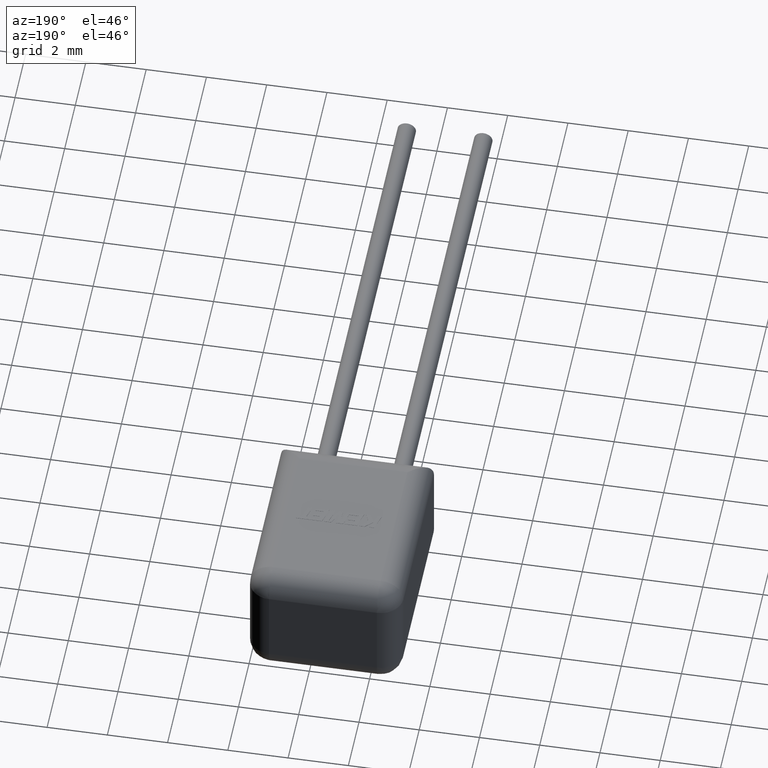
[diagram: clean part render]
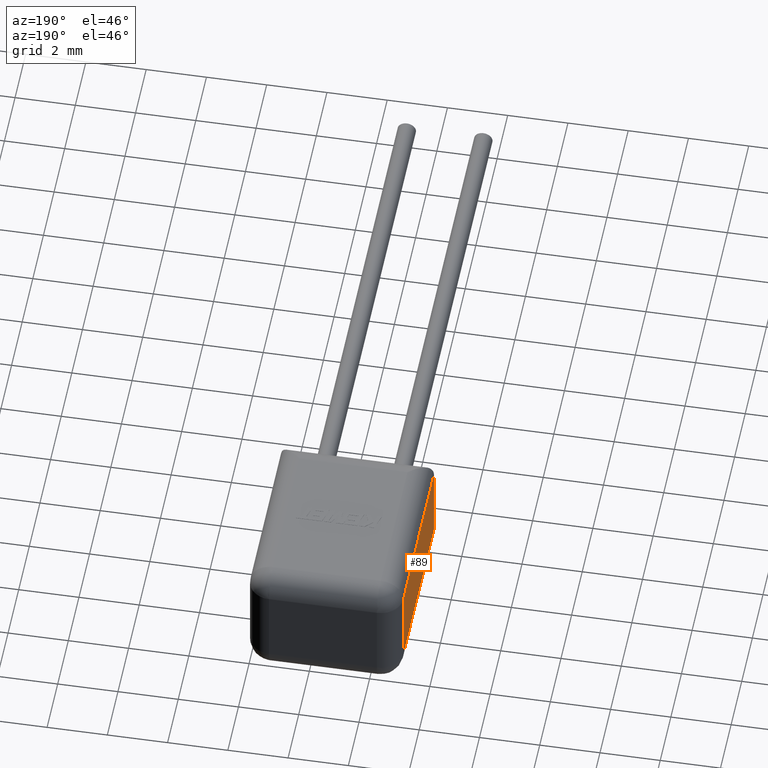
[diagram: same view with one face highlighted and labeled with its STEP entity id]
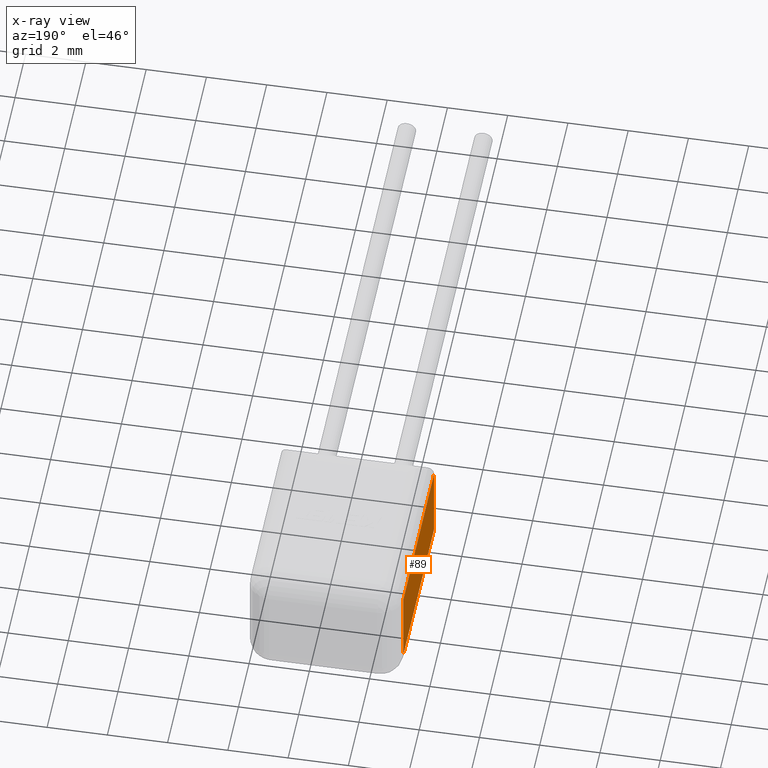
[diagram: x-ray of the same camera — body ghosted, the highlighted face saturated]
A machine part, auxiliary view. The second image highlights one B-rep face of the part: STEP entity #89.
The next image is the same camera in x-ray: the body ghosted, the highlighted face saturated — about 0% of this face is hidden behind the body in this view.
In plain terms, the highlighted planar face has unit normal (1, -0, 0).
Its self-contained STEP definition (entity closure, byte-faithful):
#14 = VECTOR ( 'NONE', #371, 1000.000000000000000 ) ;
#52 = EDGE_CURVE ( 'NONE', #290, #3305, #2172, .T. ) ;
#89 = ADVANCED_FACE ( 'NONE', ( #1023 ), #849, .F. ) ;
#287 = CARTESIAN_POINT ( 'NONE',  ( -5.079999999999999200, 5.755759999999998700, 4.070000000000000300 ) ) ;
#290 = VERTEX_POINT ( 'NONE', #1768 ) ;
#304 = DIRECTION ( 'NONE',  ( -0.0000000000000000000, -0.0000000000000000000, -1.000000000000000000 ) ) ;
#371 = DIRECTION ( 'NONE',  ( 1.333221234703407000E-016, 1.000000000000000000, -0.0000000000000000000 ) ) ;
#438 = CARTESIAN_POINT ( 'NONE',  ( -5.080000000000000100, -6.221205739668554300E-016, 3.320000000000000700 ) ) ;
#569 = EDGE_LOOP ( 'NONE', ( #1412, #1488, #2198, #947 ) ) ;
#806 = DIRECTION ( 'NONE',  ( 1.333221234703407000E-016, 1.000000000000000000, 0.0000000000000000000 ) ) ;
#819 = VERTEX_POINT ( 'NONE', #2977 ) ;
#849 = PLANE ( 'NONE',  #932 ) ;
#907 = CARTESIAN_POINT ( 'NONE',  ( -5.079999999999999200, 5.755759999999998700, 0.7499999999999997800 ) ) ;
#932 = AXIS2_PLACEMENT_3D ( 'NONE', #2874, #3449, #806 ) ;
#947 = ORIENTED_EDGE ( 'NONE', *, *, #1763, .T. ) ;
#1023 = FACE_OUTER_BOUND ( 'NONE', #569, .T. ) ;
#1152 = EDGE_CURVE ( 'NONE', #3475, #819, #1949, .T. ) ;
#1233 = CARTESIAN_POINT ( 'NONE',  ( -5.080000000000000100, -6.221205739668554300E-016, 3.320000000000000700 ) ) ;
#1269 = DIRECTION ( 'NONE',  ( -1.333221234703407000E-016, -1.000000000000000000, 0.0000000000000000000 ) ) ;
#1412 = ORIENTED_EDGE ( 'NONE', *, *, #1152, .F. ) ;
#1420 = CARTESIAN_POINT ( 'NONE',  ( -5.080000000000000100, -6.221205739668554300E-016, 4.070000000000000300 ) ) ;
#1488 = ORIENTED_EDGE ( 'NONE', *, *, #2781, .T. ) ;
#1763 = EDGE_CURVE ( 'NONE', #3305, #819, #3671, .T. ) ;
#1768 = CARTESIAN_POINT ( 'NONE',  ( -5.079999999999999200, 5.755759999999998700, 3.320000000000000700 ) ) ;
#1949 = LINE ( 'NONE', #1420, #3636 ) ;
#2135 = LINE ( 'NONE', #1233, #14 ) ;
#2172 = LINE ( 'NONE', #287, #2667 ) ;
#2198 = ORIENTED_EDGE ( 'NONE', *, *, #52, .T. ) ;
#2305 = DIRECTION ( 'NONE',  ( 0.0000000000000000000, 0.0000000000000000000, -1.000000000000000000 ) ) ;
#2667 = VECTOR ( 'NONE', #2305, 1000.000000000000000 ) ;
#2781 = EDGE_CURVE ( 'NONE', #3475, #290, #2135, .T. ) ;
#2830 = VECTOR ( 'NONE', #1269, 1000.000000000000000 ) ;
#2874 = CARTESIAN_POINT ( 'NONE',  ( -5.080000000000000100, -6.221205739668554300E-016, 4.070000000000000300 ) ) ;
#2977 = CARTESIAN_POINT ( 'NONE',  ( -5.080000000000000100, -6.221205739668554300E-016, 0.7499999999999997800 ) ) ;
#3305 = VERTEX_POINT ( 'NONE', #907 ) ;
#3449 = DIRECTION ( 'NONE',  ( 1.000000000000000000, -1.333221234703407000E-016, 0.0000000000000000000 ) ) ;
#3475 = VERTEX_POINT ( 'NONE', #438 ) ;
#3517 = CARTESIAN_POINT ( 'NONE',  ( -5.080000000000000100, -6.221205739668554300E-016, 0.7499999999999997800 ) ) ;
#3636 = VECTOR ( 'NONE', #304, 1000.000000000000000 ) ;
#3671 = LINE ( 'NONE', #3517, #2830 ) ;